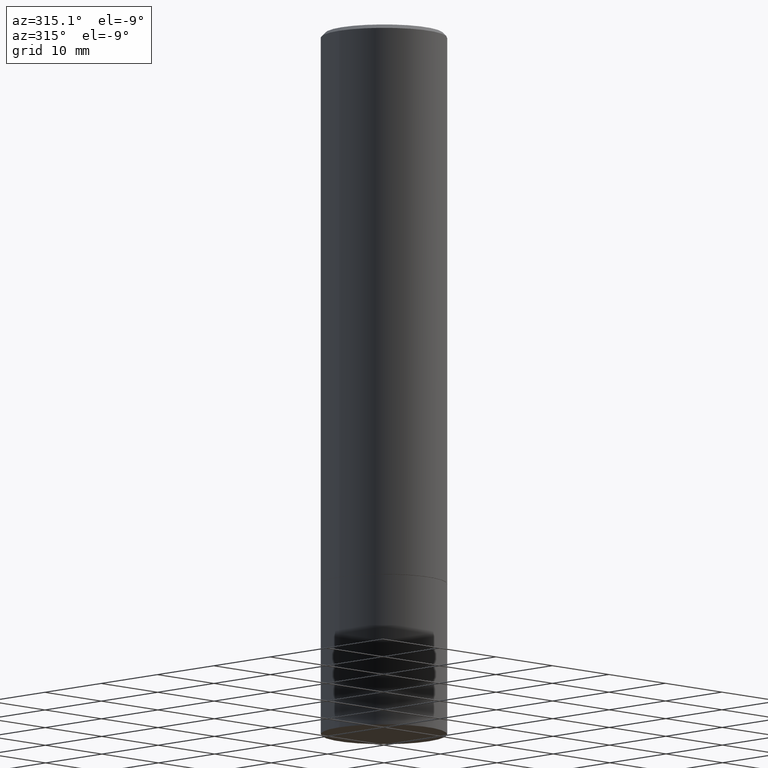
[diagram: clean part render]
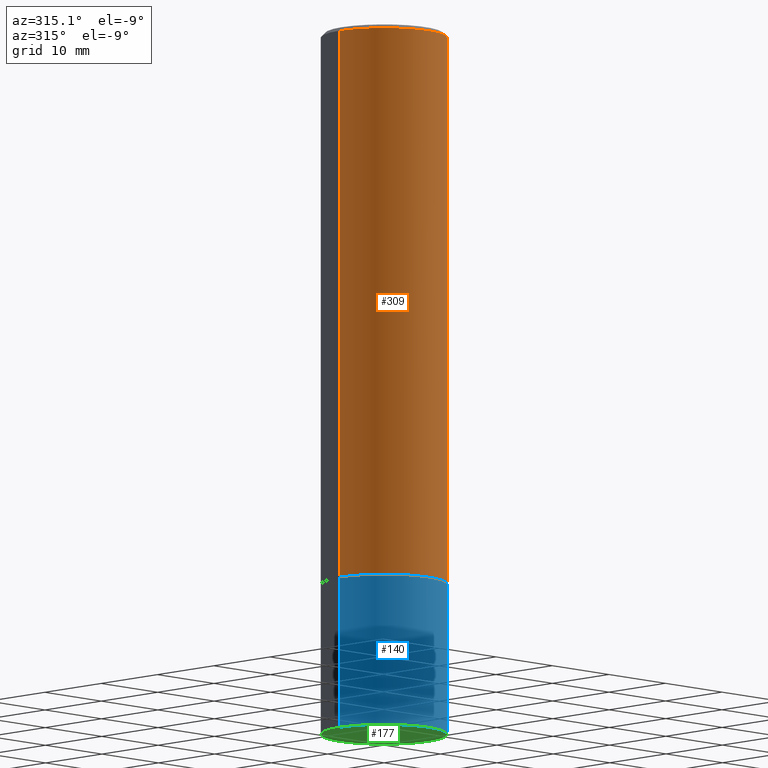
[diagram: same view with three faces highlighted in distinct colors, each labeled with its STEP entity id]
A machine part, auxiliary view with three faces highlighted in distinct colors.
Their STEP definitions:

[orange] entity #309 — the highlighted cylindrical surface (partial cylindrical patch) has radius 7.9375 mm, axis along (-0, 0, 1).
#2 = CARTESIAN_POINT ( 'NONE',  ( 6.722593748202942280E-29, -9.598082200479810007E-15, -2.749000000000000554 ) ) ;
#4 = AXIS2_PLACEMENT_3D ( 'NONE', #315, #180, #103 ) ;
#6 = DIRECTION ( 'NONE',  ( -2.445468806185136597E-29, 3.491481338843145583E-15, 1.000000000000000000 ) ) ;
#15 = VERTEX_POINT ( 'NONE', #33 ) ;
#28 = LINE ( 'NONE', #311, #279 ) ;
#32 = EDGE_CURVE ( 'NONE', #94, #15, #346, .T. ) ;
#33 = CARTESIAN_POINT ( 'NONE',  ( -0.3124999999999996114, 2.112346210000092288E-15, -0.02000000000000008715 ) ) ;
#35 = VERTEX_POINT ( 'NONE', #152 ) ;
#38 = VERTEX_POINT ( 'NONE', #142 ) ;
#56 = VECTOR ( 'NONE', #213, 39.37007874015748143 ) ;
#94 = VERTEX_POINT ( 'NONE', #257 ) ;
#100 = ORIENTED_EDGE ( 'NONE', *, *, #338, .F. ) ;
#101 = CARTESIAN_POINT ( 'NONE',  ( -0.3124999999999998335, 2.220446049250311898E-15, -1.537167215704657111E-29 ) ) ;
#103 = DIRECTION ( 'NONE',  ( 1.000000000000000000, -6.982962677686265133E-15, 0.000000000000000000 ) ) ;
#109 = CIRCLE ( 'NONE', #4, 0.3124999999999996114 ) ;
#121 = DIRECTION ( 'NONE',  ( 1.000000000000000000, -6.982962677686265133E-15, 4.876176775795935232E-29 ) ) ;
#141 = DIRECTION ( 'NONE',  ( 1.000000000000000000, -6.982962677686269077E-15, 0.000000000000000000 ) ) ;
#142 = CARTESIAN_POINT ( 'NONE',  ( 0.3124999999999996114, -2.213735251080464150E-15, -0.02000000000000008715 ) ) ;
#152 = CARTESIAN_POINT ( 'NONE',  ( 0.3125000000000000000, -1.178025803725676835E-14, -2.749000000000000554 ) ) ;
#160 = EDGE_CURVE ( 'NONE', #94, #35, #165, .T. ) ;
#165 = CIRCLE ( 'NONE', #320, 0.3125000000000000000 ) ;
#174 = DIRECTION ( 'NONE',  ( -2.445468806185136877E-29, 3.491481338843145188E-15, 1.000000000000000000 ) ) ;
#180 = DIRECTION ( 'NONE',  ( -2.445468806185136597E-29, 3.491481338843145583E-15, 1.000000000000000000 ) ) ;
#187 = CYLINDRICAL_SURFACE ( 'NONE', #234, 0.3124999999999998335 ) ;
#206 = FACE_OUTER_BOUND ( 'NONE', #325, .T. ) ;
#213 = DIRECTION ( 'NONE',  ( -2.445468806185136877E-29, 3.491481338843145188E-15, 1.000000000000000000 ) ) ;
#234 = AXIS2_PLACEMENT_3D ( 'NONE', #267, #6, #121 ) ;
#235 = DIRECTION ( 'NONE',  ( -2.445468806185136597E-29, 3.491481338843145583E-15, 1.000000000000000000 ) ) ;
#257 = CARTESIAN_POINT ( 'NONE',  ( -0.3125000000000000000, -2.613509864378020417E-15, -2.749000000000000554 ) ) ;
#267 = CARTESIAN_POINT ( 'NONE',  ( 0.000000000000000000, 0.000000000000000000, 0.000000000000000000 ) ) ;
#279 = VECTOR ( 'NONE', #174, 39.37007874015748143 ) ;
#309 = ADVANCED_FACE ( 'NONE', ( #206 ), #187, .T. ) ;
#311 = CARTESIAN_POINT ( 'NONE',  ( 0.3124999999999998335, -2.182175836776956769E-15, 1.523805242436228954E-29 ) ) ;
#313 = ORIENTED_EDGE ( 'NONE', *, *, #160, .T. ) ;
#315 = CARTESIAN_POINT ( 'NONE',  ( 4.890937612370294178E-31, -6.982962677686321191E-17, -0.02000000000000008715 ) ) ;
#320 = AXIS2_PLACEMENT_3D ( 'NONE', #2, #235, #141 ) ;
#321 = ORIENTED_EDGE ( 'NONE', *, *, #32, .F. ) ;
#325 = EDGE_LOOP ( 'NONE', ( #321, #313, #347, #100 ) ) ;
#338 = EDGE_CURVE ( 'NONE', #15, #38, #109, .T. ) ;
#343 = EDGE_CURVE ( 'NONE', #35, #38, #28, .T. ) ;
#346 = LINE ( 'NONE', #101, #56 ) ;
#347 = ORIENTED_EDGE ( 'NONE', *, *, #343, .T. ) ;

[blue] entity #140 — the highlighted cylindrical surface (partial cylindrical patch) has radius 7.9375 mm, axis along (-0, 0, 1).
#5 = LINE ( 'NONE', #54, #44 ) ;
#9 = ORIENTED_EDGE ( 'NONE', *, *, #328, .F. ) ;
#14 = ORIENTED_EDGE ( 'NONE', *, *, #299, .T. ) ;
#31 = VERTEX_POINT ( 'NONE', #268 ) ;
#44 = VECTOR ( 'NONE', #349, 39.37007874015748143 ) ;
#45 = DIRECTION ( 'NONE',  ( 1.000000000000000000, -6.982962677686266711E-15, 4.876176775795936353E-29 ) ) ;
#47 = CYLINDRICAL_SURFACE ( 'NONE', #243, 0.3125000000000000000 ) ;
#51 = CARTESIAN_POINT ( 'NONE',  ( 0.3125000000000000000, -2.182175836776958347E-15, 1.523805242436230075E-29 ) ) ;
#54 = CARTESIAN_POINT ( 'NONE',  ( -0.3125000000000000000, 2.220446049250313081E-15, -1.537167215704658232E-29 ) ) ;
#61 = EDGE_CURVE ( 'NONE', #215, #296, #137, .T. ) ;
#74 = EDGE_CURVE ( 'NONE', #294, #296, #330, .T. ) ;
#83 = DIRECTION ( 'NONE',  ( -2.445468806185136597E-29, 3.491481338843145583E-15, 1.000000000000000000 ) ) ;
#87 = DIRECTION ( 'NONE',  ( 1.000000000000000000, -6.982962677686269077E-15, 0.000000000000000000 ) ) ;
#126 = ORIENTED_EDGE ( 'NONE', *, *, #74, .F. ) ;
#133 = CIRCLE ( 'NONE', #310, 0.3125000000000000000 ) ;
#137 = LINE ( 'NONE', #51, #266 ) ;
#140 = ADVANCED_FACE ( 'NONE', ( #264 ), #47, .T. ) ;
#151 = DIRECTION ( 'NONE',  ( -2.445468806185136597E-29, 3.491481338843145583E-15, 1.000000000000000000 ) ) ;
#188 = CARTESIAN_POINT ( 'NONE',  ( 0.3125000000000000000, -1.440236052272796769E-14, -3.500000000000000000 ) ) ;
#201 = CARTESIAN_POINT ( 'NONE',  ( 6.725039217009124520E-29, -9.601573681818649859E-15, -2.750000000000000000 ) ) ;
#215 = VERTEX_POINT ( 'NONE', #188 ) ;
#218 = CARTESIAN_POINT ( 'NONE',  ( 0.3125000000000000000, -1.178374951859560978E-14, -2.750000000000000000 ) ) ;
#233 = DIRECTION ( 'NONE',  ( -2.445468806185136877E-29, 3.491481338843145188E-15, 1.000000000000000000 ) ) ;
#243 = AXIS2_PLACEMENT_3D ( 'NONE', #285, #363, #45 ) ;
#247 = ORIENTED_EDGE ( 'NONE', *, *, #61, .T. ) ;
#264 = FACE_OUTER_BOUND ( 'NONE', #291, .T. ) ;
#266 = VECTOR ( 'NONE', #233, 39.37007874015748143 ) ;
#268 = CARTESIAN_POINT ( 'NONE',  ( -0.3125000000000000000, -8.690433134634516520E-15, -3.500000000000000000 ) ) ;
#269 = DIRECTION ( 'NONE',  ( 1.000000000000000000, -6.982962677686269077E-15, 0.000000000000000000 ) ) ;
#285 = CARTESIAN_POINT ( 'NONE',  ( 0.000000000000000000, 0.000000000000000000, 0.000000000000000000 ) ) ;
#291 = EDGE_LOOP ( 'NONE', ( #9, #14, #247, #126 ) ) ;
#294 = VERTEX_POINT ( 'NONE', #295 ) ;
#295 = CARTESIAN_POINT ( 'NONE',  ( -0.3125000000000000000, -8.690433134634516520E-15, -2.750000000000000000 ) ) ;
#296 = VERTEX_POINT ( 'NONE', #218 ) ;
#299 = EDGE_CURVE ( 'NONE', #31, #215, #133, .T. ) ;
#310 = AXIS2_PLACEMENT_3D ( 'NONE', #319, #151, #269 ) ;
#319 = CARTESIAN_POINT ( 'NONE',  ( 8.559140821647976968E-29, -1.222018468595100934E-14, -3.500000000000000000 ) ) ;
#328 = EDGE_CURVE ( 'NONE', #31, #294, #5, .T. ) ;
#330 = CIRCLE ( 'NONE', #361, 0.3125000000000000000 ) ;
#349 = DIRECTION ( 'NONE',  ( -2.445468806185136877E-29, 3.491481338843145188E-15, 1.000000000000000000 ) ) ;
#361 = AXIS2_PLACEMENT_3D ( 'NONE', #201, #83, #87 ) ;
#363 = DIRECTION ( 'NONE',  ( -2.445468806185136597E-29, 3.491481338843145583E-15, 1.000000000000000000 ) ) ;

[green] entity #177 — the highlighted planar face has unit normal (0, -0, -1).
#25 = DIRECTION ( 'NONE',  ( -2.445468806185136597E-29, 3.491481338843145583E-15, 1.000000000000000000 ) ) ;
#31 = VERTEX_POINT ( 'NONE', #268 ) ;
#39 = AXIS2_PLACEMENT_3D ( 'NONE', #92, #203, #248 ) ;
#72 = CIRCLE ( 'NONE', #275, 0.3125000000000000000 ) ;
#84 = EDGE_CURVE ( 'NONE', #215, #31, #72, .T. ) ;
#92 = CARTESIAN_POINT ( 'NONE',  ( 2.182175836777043938E-15, 0.3124999999999877875, -3.500000000000000888 ) ) ;
#111 = DIRECTION ( 'NONE',  ( 1.000000000000000000, -6.982962677686269077E-15, 0.000000000000000000 ) ) ;
#133 = CIRCLE ( 'NONE', #310, 0.3125000000000000000 ) ;
#151 = DIRECTION ( 'NONE',  ( -2.445468806185136597E-29, 3.491481338843145583E-15, 1.000000000000000000 ) ) ;
#177 = ADVANCED_FACE ( 'NONE', ( #246 ), #340, .T. ) ;
#188 = CARTESIAN_POINT ( 'NONE',  ( 0.3125000000000000000, -1.440236052272796769E-14, -3.500000000000000000 ) ) ;
#200 = CARTESIAN_POINT ( 'NONE',  ( 8.559140821647976968E-29, -1.222018468595100934E-14, -3.500000000000000000 ) ) ;
#203 = DIRECTION ( 'NONE',  ( 2.438088387897960049E-29, -3.491481338843145188E-15, -1.000000000000000000 ) ) ;
#212 = ORIENTED_EDGE ( 'NONE', *, *, #299, .F. ) ;
#215 = VERTEX_POINT ( 'NONE', #188 ) ;
#246 = FACE_OUTER_BOUND ( 'NONE', #293, .T. ) ;
#248 = DIRECTION ( 'NONE',  ( -1.000000000000000000, 6.982962677686265922E-15, -4.876176775795935793E-29 ) ) ;
#268 = CARTESIAN_POINT ( 'NONE',  ( -0.3125000000000000000, -8.690433134634516520E-15, -3.500000000000000000 ) ) ;
#269 = DIRECTION ( 'NONE',  ( 1.000000000000000000, -6.982962677686269077E-15, 0.000000000000000000 ) ) ;
#275 = AXIS2_PLACEMENT_3D ( 'NONE', #200, #25, #111 ) ;
#293 = EDGE_LOOP ( 'NONE', ( #312, #212 ) ) ;
#299 = EDGE_CURVE ( 'NONE', #31, #215, #133, .T. ) ;
#310 = AXIS2_PLACEMENT_3D ( 'NONE', #319, #151, #269 ) ;
#312 = ORIENTED_EDGE ( 'NONE', *, *, #84, .F. ) ;
#319 = CARTESIAN_POINT ( 'NONE',  ( 8.559140821647976968E-29, -1.222018468595100934E-14, -3.500000000000000000 ) ) ;
#340 = PLANE ( 'NONE',  #39 ) ;